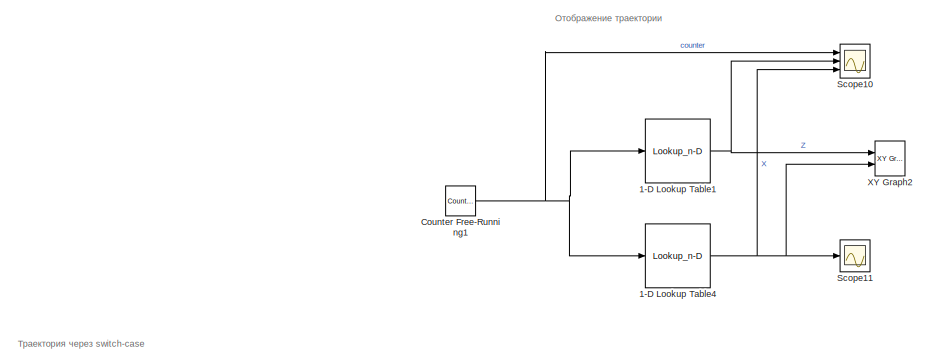
[diagram: root canvas - part 1/5, top left region]
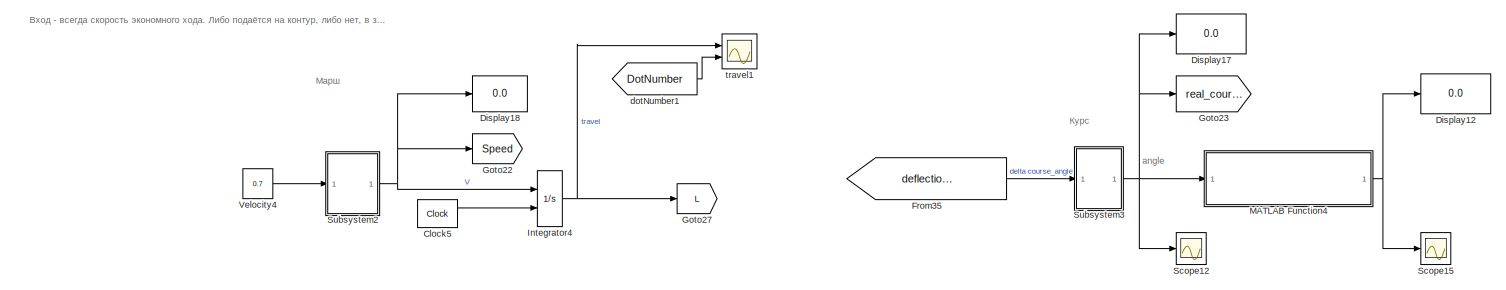
[diagram: root canvas - part 2/5, top center region]
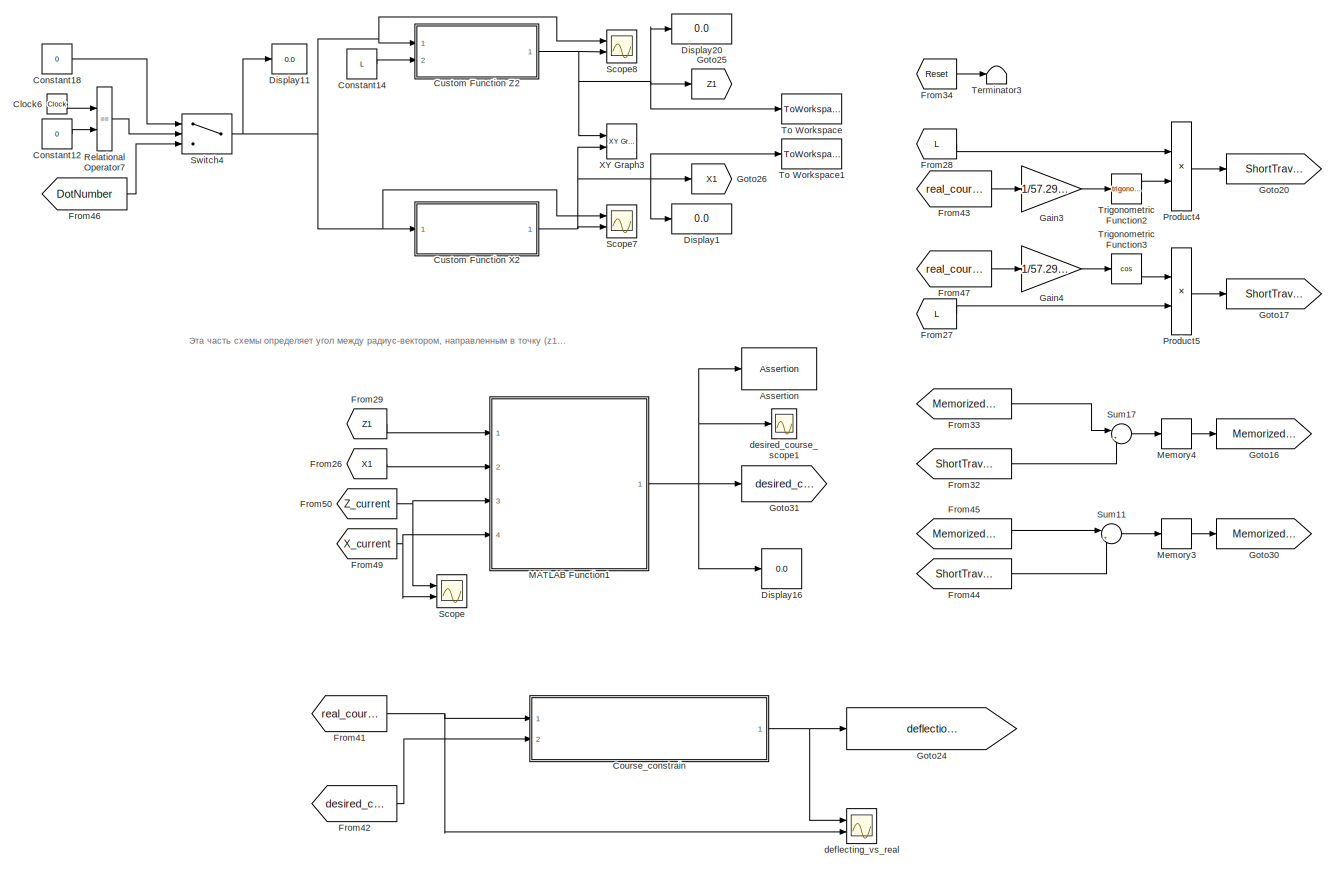
[diagram: root canvas - part 3/5, middle left region]
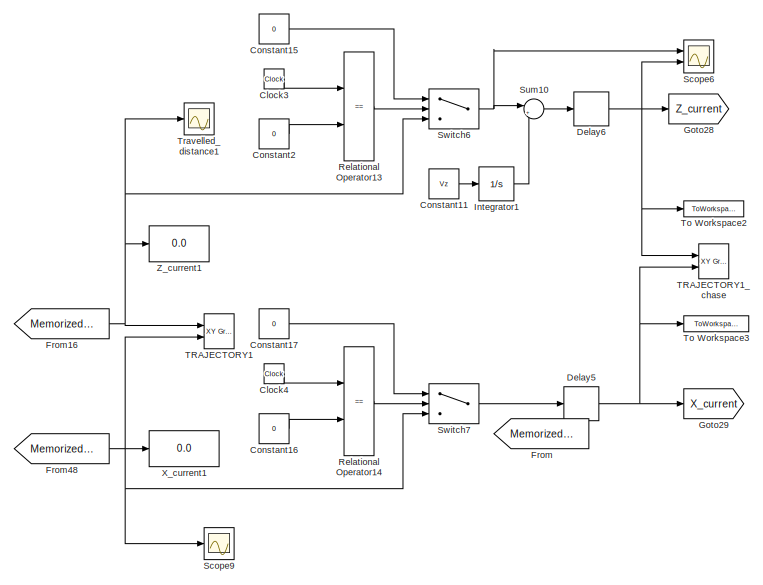
[diagram: root canvas - part 4/5, central region]
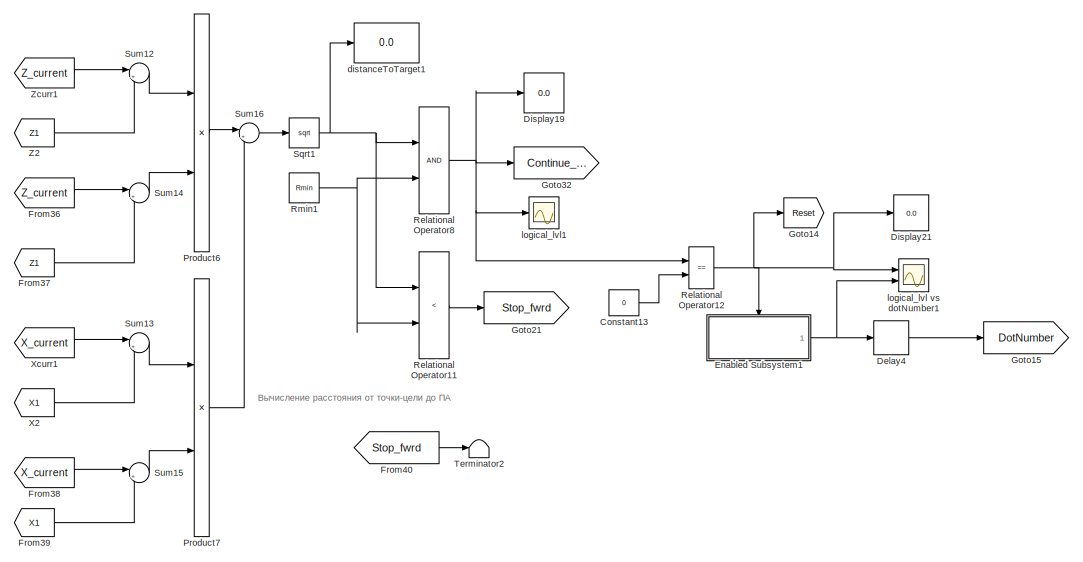
[diagram: root canvas - part 5/5, middle right region]
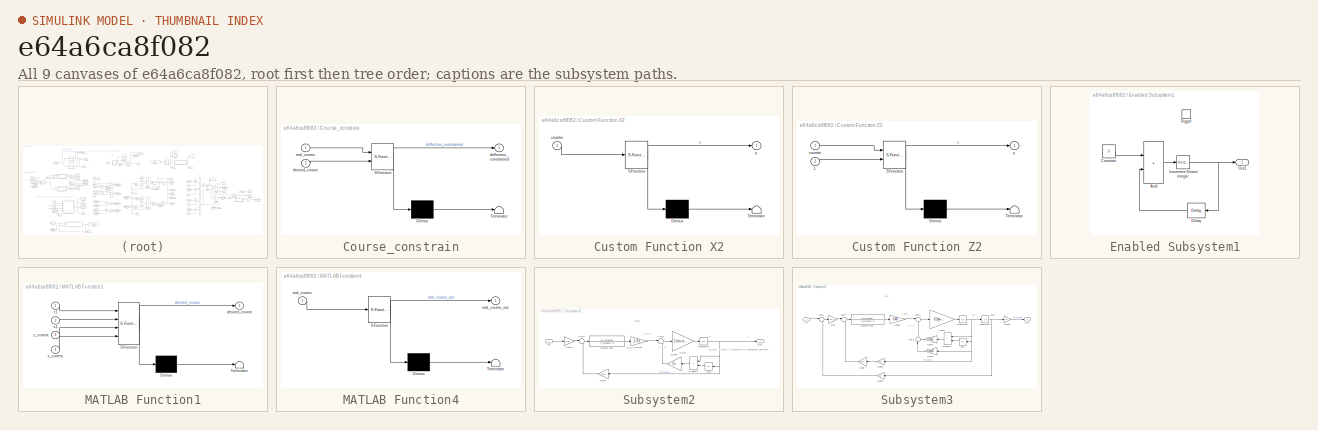
[diagram: thumbnail index - all 9 canvases of the model, root first then tree order]
MODEL slx_e64a6ca8f082
KIND model
CONFIG AbsTol = auto
CONFIG EnableMultiTasking = off
CONFIG FixedStep = 0.0000001
CONFIG MaxStep = auto
CONFIG MinStep = auto
CONFIG RelTol = 1e-3
CONFIG SampleTimeConstraint = Unconstrained
CONFIG Solver = VariableStepAuto
CONFIG SolverName = VariableStepAuto
CONFIG StartTime = 0.0
CONFIG StopTime = 400
BLOCK [Lookup_n-D] 1-D Lookup Table1
  BreakpointsForDimension1 = [0:7]
  BreakpointsForDimension1DataTypeStr = uint8
  BreakpointsForDimension1FirstPoint = 0
  Commented = on
  ExtrapMethod = Cubic spline
  InternalRulePriority = Speed
  InterpMethod = Flat
  NumberOfTableDimensions = 1
  OutDataTypeStr = double
  Ports = [1, 1]
  RemoveProtectionInput = on
  RndMeth = Zero
  Table = [0,0,L,L,2*L,2*L,3*L, 3*L]
  TableDataTypeStr = double
BLOCK [Lookup_n-D] 1-D Lookup Table4
  BreakpointsForDimension1 = [0:7]
  BreakpointsForDimension1DataTypeStr = int16
  Commented = on
  InternalRulePriority = Speed
  InterpMethod = Flat
  NumberOfTableDimensions = 1
  OutDataTypeStr = double
  Ports = [1, 1]
  RemoveProtectionInput = on
  RndMeth = Zero
  Table = [0,25,25,0,0,25,25,0]
  TableDataTypeStr = double
BLOCK [Assertion] Assertion
  AssertionFailFcn = -1
  Commented = on
BLOCK [Clock] Clock3
BLOCK [Clock] Clock4
BLOCK [Reference] Clock5  REF=simulink_extras/Flip Flops/Clock
  Ports = [0, 1]
  SourceBlock = simulink_extras/Flip Flops/Clock
  SourceProductBaseCode = SL
  SourceType = Digital clock
BLOCK [Clock] Clock6
BLOCK [Constant] Constant11
  Value = Vz
BLOCK [Constant] Constant12
  Value = 0
BLOCK [Constant] Constant13
  Value = 0
BLOCK [Constant] Constant14
  Value = L
BLOCK [Constant] Constant15
  Value = 0
BLOCK [Constant] Constant16
  Value = 0
BLOCK [Constant] Constant17
  Value = 0
BLOCK [Constant] Constant18
  Value = 0
BLOCK [Constant] Constant2
  Value = 0
BLOCK [Reference] Counter Free-Running1  REF=simulink/Sources/Counter
Free-Running
  Commented = on
  Ports = [0, 1]
  SourceBlock = simulink/Sources/Counter\nFree-Running
  SourceProductBaseCode = SL
  SourceType = Counter Free-Running
BLOCK [SubSystem] Course_constrain
  ErrorFcn = Stateflow.Translate.translate
  PermitHierarchicalResolution = ExplicitOnly
  Ports = [2, 1]
  RequestExecContextInheritance = off
  SFBlockType = MATLAB Function
  TreatAsAtomicUnit = on
BLOCK [Demux] Course_constrain/ Demux 
  Outputs = 1
  Ports = [1, 1]
BLOCK [S-Function] Course_constrain/ SFunction 
  EnableBusSupport = off
  FunctionName = sf_sfun
  PortCounts = [2 2]
  Ports = [2, 2]
  SFcnIsStateOwnerBlock = off
  SFunctionDeploymentMode = off
  Tag = Stateflow S-Function 8
BLOCK [Terminator] Course_constrain/ Terminator 
BLOCK [Outport] Course_constrain/deflection_constrained
  VectorParamsAs1DForOutWhenUnconnected = off
BLOCK [Inport] Course_constrain/desired_course
  Port = 2
BLOCK [Inport] Course_constrain/real_course
BLOCK [SubSystem] Custom Function X2
  ErrorFcn = Stateflow.Translate.translate
  PermitHierarchicalResolution = ExplicitOnly
  Ports = [1, 1]
  RequestExecContextInheritance = off
  SFBlockType = MATLAB Function
  TreatAsAtomicUnit = on
BLOCK [Demux] Custom Function X2/ Demux 
  Outputs = 1
  Ports = [1, 1]
BLOCK [S-Function] Custom Function X2/ SFunction 
  EnableBusSupport = off
  FunctionName = sf_sfun
  PortCounts = [1 2]
  Ports = [1, 2]
  SFcnIsStateOwnerBlock = off
  SFunctionDeploymentMode = off
  Tag = Stateflow S-Function 1
BLOCK [Terminator] Custom Function X2/ Terminator 
BLOCK [Inport] Custom Function X2/counter
BLOCK [Outport] Custom Function X2/y
  VectorParamsAs1DForOutWhenUnconnected = off
BLOCK [SubSystem] Custom Function Z2
  ErrorFcn = Stateflow.Translate.translate
  PermitHierarchicalResolution = ExplicitOnly
  Ports = [2, 1]
  RequestExecContextInheritance = off
  SFBlockType = MATLAB Function
  TreatAsAtomicUnit = on
BLOCK [Demux] Custom Function Z2/ Demux 
  Outputs = 1
  Ports = [1, 1]
BLOCK [S-Function] Custom Function Z2/ SFunction 
  EnableBusSupport = off
  FunctionName = sf_sfun
  PortCounts = [2 2]
  Ports = [2, 2]
  SFcnIsStateOwnerBlock = off
  SFunctionDeploymentMode = off
  Tag = Stateflow S-Function 2
BLOCK [Terminator] Custom Function Z2/ Terminator 
BLOCK [Inport] Custom Function Z2/L
  Port = 2
BLOCK [Inport] Custom Function Z2/counter
BLOCK [Outport] Custom Function Z2/y
  VectorParamsAs1DForOutWhenUnconnected = off
BLOCK [Delay] Delay4
  DelayLength = 1
  InitialCondition = 0
  InputPortMap = u0
  Ports = [1, 1]
  SampleTime = 0.05
BLOCK [Delay] Delay5
  DelayLength = 1
  InputPortMap = u0
  Ports = [1, 1]
  SampleTime = 0.05
BLOCK [Delay] Delay6
  DelayLength = 1
  InputPortMap = u0
  Ports = [1, 1]
  SampleTime = 0.05
BLOCK [Display] Display1
  Decimation = 1
  Ports = [1]
BLOCK [Display] Display11
  Decimation = 1
  Ports = [1]
BLOCK [Display] Display12
  Decimation = 1
  Ports = [1]
BLOCK [Display] Display16
  Decimation = 1
  Ports = [1]
BLOCK [Display] Display17
  Decimation = 1
  Ports = [1]
BLOCK [Display] Display18
  Decimation = 1
  Ports = [1]
BLOCK [Display] Display19
  Decimation = 1
  Ports = [1]
BLOCK [Display] Display20
  Decimation = 1
  Ports = [1]
BLOCK [Display] Display21
  Decimation = 1
  Ports = [1]
BLOCK [SubSystem] Enabled Subsystem1
  Ports = [0, 1, 0, 1]
  RequestExecContextInheritance = off
  TreatAsAtomicUnit = on
BLOCK [Sum] Enabled Subsystem1/Add
  IconShape = rectangular
  Ports = [2, 1]
BLOCK [Constant] Enabled Subsystem1/Constant
  Value = 0
BLOCK [Delay] Enabled Subsystem1/Delay
  DelayLength = 1
  InitialCondition = 0
  InputPortMap = u0
  NameLocation = top
  Ports = [1, 1]
BLOCK [Reference] Enabled Subsystem1/Increment Stored Integer  REF=simulink/Additional Math
& Discrete/Additional Math:
Increment - Decrement/Increment
Stored Integer
  Ports = [1, 1]
  SourceBlock = simulink/Additional Math\n& Discrete/Additional Math:\nIncrement - Decrement/Increment\nStored Integer
  SourceProductBaseCode = SL
  SourceType = Stored Integer Value Increment
BLOCK [Outport] Enabled Subsystem1/Out1
  VectorParamsAs1DForOutWhenUnconnected = off
BLOCK [TriggerPort] Enabled Subsystem1/Trigger
  PortDimensions = 1
  Ports = []
  StatesWhenEnabling = held
  VariantControl = Variant
BLOCK [From] From
  GotoTag = Memorized_Z
BLOCK [From] From16
  GotoTag = Memorized_Z
BLOCK [From] From26
  GotoTag = X1
BLOCK [From] From27
  GotoTag = L
BLOCK [From] From28
  GotoTag = L
BLOCK [From] From29
  GotoTag = Z1
BLOCK [From] From32
  GotoTag = ShortTravel_Z
BLOCK [From] From33
  GotoTag = Memorized_Z
BLOCK [From] From34
  GotoTag = Reset
BLOCK [From] From35
  GotoTag = deflection_course_constrained
BLOCK [From] From36
  GotoTag = Z_current
BLOCK [From] From37
  GotoTag = Z1
BLOCK [From] From38
  GotoTag = X_current
BLOCK [From] From39
  GotoTag = X1
BLOCK [From] From40
  GotoTag = Stop_fwrd
BLOCK [From] From41
  GotoTag = real_course
BLOCK [From] From42
  GotoTag = desired_course
BLOCK [From] From43
  GotoTag = real_course
BLOCK [From] From44
  GotoTag = ShortTravel_X
BLOCK [From] From45
  GotoTag = Memorized_X
BLOCK [From] From46
  GotoTag = DotNumber
BLOCK [From] From47
  GotoTag = real_course
BLOCK [From] From48
  GotoTag = Memorized_X
BLOCK [From] From49
  GotoTag = X_current
BLOCK [From] From50
  GotoTag = Z_current
BLOCK [Gain] Gain3
  Gain = 1/57.2958
BLOCK [Gain] Gain4
  Gain = 1/57.2958
BLOCK [Goto] Goto14
  GotoTag = Reset
BLOCK [Goto] Goto15
  GotoTag = DotNumber
BLOCK [Goto] Goto16
  GotoTag = Memorized_Z
BLOCK [Goto] Goto17
  GotoTag = ShortTravel_X
BLOCK [Goto] Goto20
  GotoTag = ShortTravel_Z
BLOCK [Goto] Goto21
  GotoTag = Stop_fwrd
BLOCK [Goto] Goto22
  GotoTag = Speed
BLOCK [Goto] Goto23
  GotoTag = real_course
BLOCK [Goto] Goto24
  GotoTag = deflection_course_constrained
BLOCK [Goto] Goto25
  GotoTag = Z1
BLOCK [Goto] Goto26
  GotoTag = X1
BLOCK [Goto] Goto27
  GotoTag = L
BLOCK [Goto] Goto28
  GotoTag = Z_current
BLOCK [Goto] Goto29
  GotoTag = X_current
BLOCK [Goto] Goto30
  GotoTag = Memorized_X
BLOCK [Goto] Goto31
  GotoTag = desired_course
BLOCK [Goto] Goto32
  Commented = on
  GotoTag = Continue_fwrd
BLOCK [Integrator] Integrator1
  Ports = [1, 1]
BLOCK [Integrator] Integrator4
  ExternalReset = rising
  Ports = [2, 1]
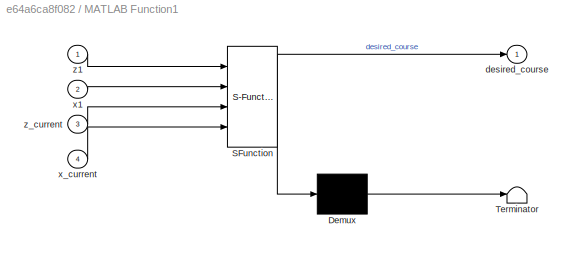
BLOCK [SubSystem] MATLAB Function1
  ErrorFcn = Stateflow.Translate.translate
  PermitHierarchicalResolution = ExplicitOnly
  Ports = [4, 1]
  RequestExecContextInheritance = off
  SFBlockType = MATLAB Function
  TreatAsAtomicUnit = on
BLOCK [Demux] MATLAB Function1/ Demux 
  Outputs = 1
  Ports = [1, 1]
BLOCK [S-Function] MATLAB Function1/ SFunction 
  EnableBusSupport = off
  FunctionName = sf_sfun
  PortCounts = [4 2]
  Ports = [4, 2]
  SFcnIsStateOwnerBlock = off
  SFunctionDeploymentMode = off
  Tag = Stateflow S-Function 6
BLOCK [Terminator] MATLAB Function1/ Terminator 
BLOCK [Outport] MATLAB Function1/desired_course
  VectorParamsAs1DForOutWhenUnconnected = off
BLOCK [Inport] MATLAB Function1/x1
  Port = 2
BLOCK [Inport] MATLAB Function1/x_current
  Port = 4
BLOCK [Inport] MATLAB Function1/z1
BLOCK [Inport] MATLAB Function1/z_current
  Port = 3
BLOCK [SubSystem] MATLAB Function4
  ErrorFcn = Stateflow.Translate.translate
  PermitHierarchicalResolution = ExplicitOnly
  Ports = [1, 1]
  RequestExecContextInheritance = off
  SFBlockType = MATLAB Function
  TreatAsAtomicUnit = on
BLOCK [Demux] MATLAB Function4/ Demux 
  Outputs = 1
  Ports = [1, 1]
BLOCK [S-Function] MATLAB Function4/ SFunction 
  EnableBusSupport = off
  FunctionName = sf_sfun
  PortCounts = [1 2]
  Ports = [1, 2]
  SFcnIsStateOwnerBlock = off
  SFunctionDeploymentMode = off
  Tag = Stateflow S-Function 7
BLOCK [Terminator] MATLAB Function4/ Terminator 
BLOCK [Inport] MATLAB Function4/real_course
BLOCK [Outport] MATLAB Function4/real_course_out
  VectorParamsAs1DForOutWhenUnconnected = off
BLOCK [Memory] Memory3
BLOCK [Memory] Memory4
BLOCK [Product] Product4
  Ports = [2, 1]
BLOCK [Product] Product5
  Ports = [2, 1]
BLOCK [Product] Product6
  Ports = [2, 1]
BLOCK [Product] Product7
  Ports = [2, 1]
BLOCK [RelationalOperator] Relational Operator11
  InputSameDT = off
  Operator = <
  OutDataTypeStr = boolean
  Ports = [2, 1]
  RndMeth = Simplest
BLOCK [RelationalOperator] Relational Operator12
  InputSameDT = off
  Operator = ==
  OutDataTypeStr = boolean
  Ports = [2, 1]
  RndMeth = Simplest
BLOCK [RelationalOperator] Relational Operator13
  InputSameDT = off
  Operator = ==
  OutDataTypeStr = boolean
  Ports = [2, 1]
  RndMeth = Simplest
BLOCK [RelationalOperator] Relational Operator14
  InputSameDT = off
  Operator = ==
  OutDataTypeStr = boolean
  Ports = [2, 1]
  RndMeth = Simplest
BLOCK [RelationalOperator] Relational Operator7
  InputSameDT = off
  Operator = ==
  OutDataTypeStr = boolean
  Ports = [2, 1]
  RndMeth = Simplest
BLOCK [RelationalOperator] Relational Operator8
  InputSameDT = off
  OutDataTypeStr = boolean
  Ports = [2, 1]
  RndMeth = Simplest
BLOCK [Constant] Rmin1
  Value = Rmin
BLOCK [Scope] Scope
  Floating = off
  NumInputPorts = 2
  Ports = [2]
  ScopeSpecificationString = Simulink.scopes.TimeScopeBlockCfg('CurrentConfiguration', extmgr.ConfigurationSet(extmgr.Configuration('Core','General UI',true),extmgr.Configuration('Core','Source UI',true),extmgr.Configuration('Sources','WiredSimulink',true,'DataLoggingVariableName','ScopeData1'),extmgr.Configuration('Visuals','Time Domain',true),extmgr.Configuration('Tools','Plot Navigation',true),extmgr.Configuration('Tools',...<+40ch>
BLOCK [Scope] Scope10
  Commented = on
  Floating = off
  NumInputPorts = 3
  Ports = [3]
  ScopeSpecificationString = Simulink.scopes.TimeScopeBlockCfg('CurrentConfiguration', extmgr.ConfigurationSet(extmgr.Configuration('Core','General UI',true),extmgr.Configuration('Core','Source UI',true),extmgr.Configuration('Sources','WiredSimulink',true,'DataLoggingVariableName','ScopeData2'),extmgr.Configuration('Visuals','Time Domain',true,'SerializedDisplays',{struct('MinYLimReal','-1.15003','MaxYLimReal','25.48588','YLa...<+1515ch>
BLOCK [Scope] Scope11
  Commented = on
  Floating = off
  NumInputPorts = 1
  Ports = [1]
  ScopeSpecificationString = Simulink.scopes.TimeScopeBlockCfg('CurrentConfiguration', extmgr.ConfigurationSet(extmgr.Configuration('Core','General UI',true),extmgr.Configuration('Core','Source UI',true),extmgr.Configuration('Sources','WiredSimulink',true,'DataLoggingVariableName','ScopeData3'),extmgr.Configuration('Visuals','Time Domain',true,'SerializedDisplays',{struct('MinYLimReal','-3.125','MaxYLimReal','28.125','YLabelR...<+1397ch>
BLOCK [Scope] Scope12
  Floating = off
  NumInputPorts = 1
  Ports = [1]
  ScopeSpecificationString = Simulink.scopes.TimeScopeBlockCfg('CurrentConfiguration', extmgr.ConfigurationSet(extmgr.Configuration('Core','General UI',true),extmgr.Configuration('Core','Source UI',true),extmgr.Configuration('Sources','WiredSimulink',true,'DataLoggingVariableName','ScopeData4'),extmgr.Configuration('Visuals','Time Domain',true,'SerializedDisplays',{struct('MinYLimReal','-42.56935','MaxYLimReal','402.57872','Y...<+1478ch>
BLOCK [Scope] Scope15
  Floating = off
  NumInputPorts = 1
  Ports = [1]
  ScopeSpecificationString = Simulink.scopes.TimeScopeBlockCfg('CurrentConfiguration', extmgr.ConfigurationSet(extmgr.Configuration('Core','General UI',true),extmgr.Configuration('Core','Source UI',true),extmgr.Configuration('Sources','WiredSimulink',true,'DataLoggingVariableName','ScopeData5'),extmgr.Configuration('Visuals','Time Domain',true,'SerializedDisplays',{struct('MinYLimReal','-45.00000','MaxYLimReal','405.00000','Y...<+1459ch>
BLOCK [Scope] Scope6
  Floating = off
  NumInputPorts = 2
  Ports = [2]
  ScopeSpecificationString = Simulink.scopes.TimeScopeBlockCfg('CurrentConfiguration', extmgr.ConfigurationSet(extmgr.Configuration('Core','General UI',true),extmgr.Configuration('Core','Source UI',true),extmgr.Configuration('Sources','WiredSimulink',true,'DataLoggingVariableName','ScopeData6'),extmgr.Configuration('Visuals','Time Domain',true,'SerializedDisplays',{struct('MinYLimReal','-0.04774','MaxYLimReal','0.42867','YLab...<+1441ch>
BLOCK [Scope] Scope7
  Floating = off
  NumInputPorts = 2
  Ports = [2]
  ScopeSpecificationString = Simulink.scopes.TimeScopeBlockCfg('CurrentConfiguration', extmgr.ConfigurationSet(extmgr.Configuration('Core','General UI',true),extmgr.Configuration('Core','Source UI',true),extmgr.Configuration('Sources','WiredSimulink',true,'DataLoggingVariableName','ScopeData7'),extmgr.Configuration('Visuals','Time Domain',true,'SerializedDisplays',{struct('MinYLimReal','-3.125','MaxYLimReal','28.125','YLabelR...<+1432ch>
BLOCK [Scope] Scope8
  Floating = off
  NumInputPorts = 2
  Ports = [2]
  ScopeSpecificationString = Simulink.scopes.TimeScopeBlockCfg('CurrentConfiguration', extmgr.ConfigurationSet(extmgr.Configuration('Core','General UI',true),extmgr.Configuration('Core','Source UI',true),extmgr.Configuration('Sources','WiredSimulink',true,'DataLoggingVariableName','ScopeData8'),extmgr.Configuration('Visuals','Time Domain',true,'SerializedDisplays',{struct('MinYLimReal','-1.25','MaxYLimReal','11.25','YLabelRea...<+1472ch>
BLOCK [Scope] Scope9
  Floating = off
  NumInputPorts = 1
  Ports = [1]
  ScopeSpecificationString = Simulink.scopes.TimeScopeBlockCfg('CurrentConfiguration', extmgr.ConfigurationSet(extmgr.Configuration('Core','General UI',true),extmgr.Configuration('Core','Source UI',true),extmgr.Configuration('Sources','WiredSimulink',true,'DataLoggingVariableName','ScopeData9'),extmgr.Configuration('Visuals','Time Domain',true,'SerializedDisplays',{struct('MinYLimReal','-16.75595','MaxYLimReal','150.80354','Y...<+1446ch>
BLOCK [Sqrt] Sqrt1
BLOCK [SubSystem] Subsystem2
  Ports = [1, 1]
  RequestExecContextInheritance = off
BLOCK [Abs] Subsystem2/Abs1
  NameLocation = top
  SaturateOnIntegerOverflow = off
BLOCK [Gain] Subsystem2/Gain4
  Gain = 6.72
BLOCK [Gain] Subsystem2/Gain5
  Gain = k2_m
  NameLocation = top
BLOCK [Gain] Subsystem2/Gain7
  Gain = 1/(m+lambda11)
BLOCK [Gain] Subsystem2/Gain8
  Gain = Cx
  NameLocation = top
BLOCK [Gain] Subsystem2/Gain9
  Gain = 2.83
BLOCK [Inport] Subsystem2/In1
BLOCK [Integrator] Subsystem2/Integrator2
  InitialCondition = 0.7
  Ports = [1, 1]
BLOCK [Outport] Subsystem2/Out1
  VectorParamsAs1DForOutWhenUnconnected = off
BLOCK [Product] Subsystem2/Product1
  NameLocation = top
  Ports = [2, 1]
BLOCK [Sum] Subsystem2/Sum4
  Inputs = |+-
  Ports = [2, 1]
BLOCK [Sum] Subsystem2/Sum5
  Inputs = |+-
  Ports = [2, 1]
BLOCK [TransferFcn] Subsystem2/Transfer Fcn1
  Denominator = [T_thruster 1]
  Numerator = [K_thruster]
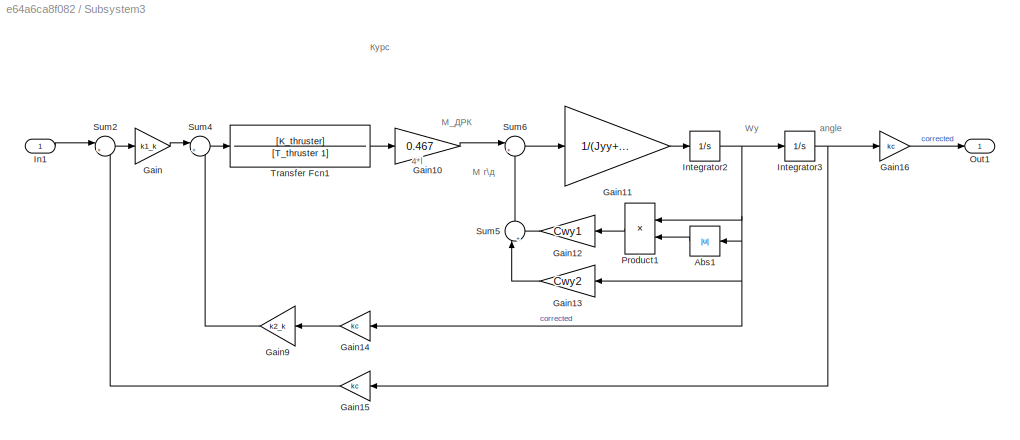
BLOCK [SubSystem] Subsystem3
  Ports = [1, 1]
  RequestExecContextInheritance = off
BLOCK [Abs] Subsystem3/Abs1
  NameLocation = top
  SaturateOnIntegerOverflow = off
BLOCK [Gain] Subsystem3/Gain
  Gain = k1_k
BLOCK [Gain] Subsystem3/Gain10
  Gain = 0.467
BLOCK [Gain] Subsystem3/Gain11
  Gain = 1/(Jyy+lambda55)
BLOCK [Gain] Subsystem3/Gain12
  Gain = Cwy1
  NameLocation = top
BLOCK [Gain] Subsystem3/Gain13
  Gain = Cwy2
  NameLocation = top
BLOCK [Gain] Subsystem3/Gain14
  Gain = kc
  NameLocation = top
BLOCK [Gain] Subsystem3/Gain15
  Gain = kc
  NameLocation = top
BLOCK [Gain] Subsystem3/Gain16
  Gain = kc
BLOCK [Gain] Subsystem3/Gain9
  Gain = k2_k
  NameLocation = top
BLOCK [Inport] Subsystem3/In1
BLOCK [Integrator] Subsystem3/Integrator2
  Ports = [1, 1]
BLOCK [Integrator] Subsystem3/Integrator3
  Ports = [1, 1]
BLOCK [Outport] Subsystem3/Out1
  VectorParamsAs1DForOutWhenUnconnected = off
BLOCK [Product] Subsystem3/Product1
  NameLocation = top
  Ports = [2, 1]
BLOCK [Sum] Subsystem3/Sum2
  Inputs = |+-
  Ports = [2, 1]
BLOCK [Sum] Subsystem3/Sum4
  Inputs = |+-
  Ports = [2, 1]
BLOCK [Sum] Subsystem3/Sum5
  Inputs = |++
  NameLocation = left
  Ports = [2, 1]
BLOCK [Sum] Subsystem3/Sum6
  Inputs = |+-
  Ports = [2, 1]
BLOCK [TransferFcn] Subsystem3/Transfer Fcn1
  Denominator = [T_thruster 1]
  Numerator = [K_thruster]
BLOCK [Sum] Sum10
  Inputs = |++
  Ports = [2, 1]
BLOCK [Sum] Sum11
  Inputs = |++
  Ports = [2, 1]
BLOCK [Sum] Sum12
  Inputs = |+-
  Ports = [2, 1]
BLOCK [Sum] Sum13
  Inputs = |+-
  Ports = [2, 1]
BLOCK [Sum] Sum14
  Inputs = |+-
  Ports = [2, 1]
BLOCK [Sum] Sum15
  Inputs = |+-
  Ports = [2, 1]
BLOCK [Sum] Sum16
  Inputs = |++
  Ports = [2, 1]
BLOCK [Sum] Sum17
  Inputs = |++
  Ports = [2, 1]
BLOCK [Switch] Switch4
  InputSameDT = off
  SaturateOnIntegerOverflow = off
  Threshold = 1
BLOCK [Switch] Switch6
  InputSameDT = off
  SaturateOnIntegerOverflow = off
  Threshold = 1
BLOCK [Switch] Switch7
  InputSameDT = off
  SaturateOnIntegerOverflow = off
  Threshold = 1
BLOCK [Reference] TRAJECTORY1  REF=simulink/Sinks/XY Graph
  Commented = on
  Ports = [2]
  SourceBlock = simulink/Sinks/XY Graph
  SourceProductBaseCode = SL
  SourceType = XY scope.
BLOCK [Reference] TRAJECTORY1_chase  REF=simulink/Sinks/XY Graph
  Ports = [2]
  SourceBlock = simulink/Sinks/XY Graph
  SourceProductBaseCode = SL
  SourceType = XY scope.
BLOCK [Terminator] Terminator2
BLOCK [Terminator] Terminator3
BLOCK [ToWorkspace] To Workspace
  FixptAsFi = on
  MaxDataPoints = inf
  Ports = [1]
  SampleTime = -1
  VariableName = trajectory_z
BLOCK [ToWorkspace] To Workspace1
  FixptAsFi = on
  MaxDataPoints = inf
  Ports = [1]
  SampleTime = -1
  VariableName = trajectory_x
BLOCK [ToWorkspace] To Workspace2
  FixptAsFi = on
  MaxDataPoints = inf
  Ports = [1]
  SampleTime = -1
  VariableName = chase_z
BLOCK [ToWorkspace] To Workspace3
  FixptAsFi = on
  MaxDataPoints = inf
  Ports = [1]
  SampleTime = -1
  VariableName = chase_x
BLOCK [Scope] Travelled_distance1
  Floating = off
  NumInputPorts = 1
  Ports = [1]
  ScopeSpecificationString = Simulink.scopes.TimeScopeBlockCfg('CurrentConfiguration', extmgr.ConfigurationSet(extmgr.Configuration('Core','General UI',true),extmgr.Configuration('Core','Source UI',true),extmgr.Configuration('Sources','WiredSimulink',true,'DataLoggingVariableName','ScopeData10'),extmgr.Configuration('Visuals','Time Domain',true,'SerializedDisplays',{struct('MinYLimReal','-0.63391','MaxYLimReal','2.28711','YLa...<+1441ch>
BLOCK [Trigonometry] Trigonometric Function2
  Ports = [1, 1]
BLOCK [Trigonometry] Trigonometric Function3
  Operator = cos
  Ports = [1, 1]
BLOCK [Constant] Velocity4
  Value = 0.7
BLOCK [From] X2
  GotoTag = X1
BLOCK [Reference] XY Graph2  REF=simulink/Sinks/XY Graph
  Commented = on
  Ports = [2]
  SourceBlock = simulink/Sinks/XY Graph
  SourceProductBaseCode = SL
  SourceType = XY scope.
BLOCK [Reference] XY Graph3  REF=simulink/Sinks/XY Graph
  Ports = [2]
  SourceBlock = simulink/Sinks/XY Graph
  SourceProductBaseCode = SL
  SourceType = XY scope.
BLOCK [Display] X_current1
  Decimation = 1
  Ports = [1]
BLOCK [From] Xcurr1
  GotoTag = X_current
BLOCK [From] Z2
  GotoTag = Z1
BLOCK [Display] Z_current1
  Decimation = 1
  Ports = [1]
BLOCK [From] Zcurr1
  GotoTag = Z_current
BLOCK [Scope] deflecting_vs_real
  Floating = off
  NumInputPorts = 2
  Ports = [2]
  ScopeSpecificationString = Simulink.scopes.TimeScopeBlockCfg('CurrentConfiguration', extmgr.ConfigurationSet(extmgr.Configuration('Core','General UI',true),extmgr.Configuration('Core','Source UI',true),extmgr.Configuration('Sources','WiredSimulink',true,'DataLoggingVariableName','ScopeData11'),extmgr.Configuration('Visuals','Time Domain',true,'SerializedDisplays',{struct('MinYLimReal','-100.60657','MaxYLimReal','369.55194',...<+1546ch>
BLOCK [Scope] desired_course_scope1
  Floating = off
  NumInputPorts = 1
  Ports = [1]
  ScopeSpecificationString = Simulink.scopes.TimeScopeBlockCfg('CurrentConfiguration', extmgr.ConfigurationSet(extmgr.Configuration('Core','General UI',true),extmgr.Configuration('Core','Source UI',true),extmgr.Configuration('Sources','WiredSimulink',true,'DataLoggingVariableName','ScopeData12'),extmgr.Configuration('Visuals','Time Domain',true,'SerializedDisplays',{struct('MinYLimReal','-42.60571','MaxYLimReal','402.61523','...<+1480ch>
BLOCK [Display] distanceToTarget1
  Decimation = 1
  Ports = [1]
BLOCK [From] dotNumber1
  GotoTag = DotNumber
BLOCK [Scope] logical_lvl vs dotNumber1
  Floating = off
  NumInputPorts = 2
  Ports = [2]
  ScopeSpecificationString = Simulink.scopes.TimeScopeBlockCfg('CurrentConfiguration', extmgr.ConfigurationSet(extmgr.Configuration('Core','General UI',true),extmgr.Configuration('Core','Source UI',true),extmgr.Configuration('Sources','WiredSimulink',true,'DataLoggingVariableName','ScopeData13'),extmgr.Configuration('Visuals','Time Domain',true,'SerializedDisplays',{struct('MinYLimReal','-3.28708','MaxYLimReal','5.43836','YLa...<+1517ch>
BLOCK [Scope] logical_lvl1
  Floating = off
  NumInputPorts = 1
  Ports = [1]
  ScopeSpecificationString = Simulink.scopes.TimeScopeBlockCfg('CurrentConfiguration', extmgr.ConfigurationSet(extmgr.Configuration('Core','General UI',true),extmgr.Configuration('Core','Source UI',true),extmgr.Configuration('Sources','WiredSimulink',true,'DataLoggingVariableName','ScopeData14'),extmgr.Configuration('Visuals','Time Domain',true,'SerializedDisplays',{struct('MinYLimReal','-0.125','MaxYLimReal','1.125','YLabelR...<+1440ch>
BLOCK [Scope] travel1
  Floating = off
  NumInputPorts = 2
  Ports = [2]
  ScopeSpecificationString = Simulink.scopes.TimeScopeBlockCfg('CurrentConfiguration', extmgr.ConfigurationSet(extmgr.Configuration('Core','General UI',true),extmgr.Configuration('Core','Source UI',true),extmgr.Configuration('Sources','WiredSimulink',true,'DataLoggingVariableName','ScopeData15'),extmgr.Configuration('Visuals','Time Domain',true,'SerializedDisplays',{struct('MinYLimReal','-12.67329','MaxYLimReal','114.05963','...<+1483ch>
ANNOTATION (root): Курс
ANNOTATION (root): Марш
ANNOTATION (root): angle
ANNOTATION (root): Вход - всегда скорость экономного хода. Либо подаётся на контур, либо нет, в зависимости от близости к точке назначения
ANNOTATION (root): Вычисление расстояния от точки-цели до ПА
ANNOTATION (root): Отображение траектории
ANNOTATION (root): Траектория через switch-case
ANNOTATION (root): Эта часть схемы определяет угол между радиус-вектором, направленным в точку (z1, x1) и осью z. Иначе говоря, это угол beta
ANNOTATION Subsystem2: 4*sin(45)
ANNOTATION Subsystem2: Марш
ANNOTATION Subsystem2: P_ДРК
ANNOTATION Subsystem2: R г\д
ANNOTATION Subsystem2: Vx
ANNOTATION Subsystem2: x
ANNOTATION Subsystem2: Выход - X или Z, в зависимости от направления движения
ANNOTATION Subsystem3: 4*l
ANNOTATION Subsystem3: Курс
ANNOTATION Subsystem3: M г\д
ANNOTATION Subsystem3: M_ДРК
ANNOTATION Subsystem3: Wy
ANNOTATION Subsystem3: angle
NET 1-D Lookup Table1:1 -> Scope10:2, XY Graph2:1
NET 1-D Lookup Table4:1 -> Scope10:3, Scope11:1, XY Graph2:2
LINE Clock3:1 -> Relational Operator13:1
LINE Clock4:1 -> Relational Operator14:1
LINE Clock5:1 -> Integrator4:2
LINE Clock6:1 -> Relational Operator7:1
LINE Constant11:1 -> Integrator1:1
LINE Constant12:1 -> Relational Operator7:2
LINE Constant13:1 -> Relational Operator12:2
LINE Constant14:1 -> Custom Function Z2:2
LINE Constant15:1 -> Switch6:1
LINE Constant16:1 -> Relational Operator14:2
LINE Constant17:1 -> Switch7:1
LINE Constant18:1 -> Switch4:1
LINE Constant2:1 -> Relational Operator13:2
NET Counter Free-Running1:1 -> 1-D Lookup Table1:1, 1-D Lookup Table4:1, Scope10:1
NET Course_constrain:1 -> Goto24:1, deflecting_vs_real:1
NET Custom Function X2:1 -> Display1:1, Goto26:1, Scope7:2, To Workspace1:1, XY Graph3:2
NET Custom Function Z2:1 -> Display20:1, Goto25:1, Scope8:2, To Workspace:1, XY Graph3:1
LINE Delay4:1 -> Goto15:1
NET Delay5:1 -> Goto29:1, TRAJECTORY1_chase:2, To Workspace3:1
NET Delay6:1 -> Goto28:1, Scope6:2, TRAJECTORY1_chase:1, To Workspace2:1
LINE Enabled Subsystem1/Add:1 -> Enabled Subsystem1/Increment Stored Integer:1
LINE Enabled Subsystem1/Constant:1 -> Enabled Subsystem1/Add:1
LINE Enabled Subsystem1/Delay:1 -> Enabled Subsystem1/Add:2
NET Enabled Subsystem1/Increment Stored Integer:1 -> Enabled Subsystem1/Delay:1, Enabled Subsystem1/Out1:1
NET Enabled Subsystem1:1 -> Delay4:1, logical_lvl vs dotNumber1:2
NET From16:1 -> Switch6:3, TRAJECTORY1:1, Travelled_distance1:1, Z_current1:1
LINE From26:1 -> MATLAB Function1:2
LINE From27:1 -> Product5:2
LINE From28:1 -> Product4:1
LINE From29:1 -> MATLAB Function1:1
LINE From32:1 -> Sum17:2
LINE From33:1 -> Sum17:1
LINE From34:1 -> Terminator3:1
LINE From35:1 -> Subsystem3:1
LINE From36:1 -> Sum14:1
LINE From37:1 -> Sum14:2
LINE From38:1 -> Sum15:1
LINE From39:1 -> Sum15:2
LINE From40:1 -> Terminator2:1
NET From41:1 -> Course_constrain:1, deflecting_vs_real:2
LINE From42:1 -> Course_constrain:2
LINE From43:1 -> Gain3:1
LINE From44:1 -> Sum11:2
LINE From45:1 -> Sum11:1
LINE From46:1 -> Switch4:3
LINE From47:1 -> Gain4:1
NET From48:1 -> Scope9:1, Switch7:3, TRAJECTORY1:2, X_current1:1
NET From49:1 -> MATLAB Function1:4, Scope:2
NET From50:1 -> MATLAB Function1:3, Scope:1
LINE Gain3:1 -> Trigonometric Function2:1
LINE Gain4:1 -> Trigonometric Function3:1
LINE Integrator1:1 -> Sum10:2
NET Integrator4:1 -> Goto27:1, travel1:1
NET MATLAB Function1:1 -> Assertion:1, Display16:1, Goto31:1, desired_course_scope1:1
NET MATLAB Function4:1 -> Display12:1, Scope15:1
LINE Memory3:1 -> Goto30:1
LINE Memory4:1 -> Goto16:1
LINE Product4:1 -> Goto20:1
LINE Product5:1 -> Goto17:1
LINE Product6:1 -> Sum16:1
LINE Product7:1 -> Sum16:2
LINE Relational Operator11:1 -> Goto21:1
NET Relational Operator12:1 -> Display21:1, Enabled Subsystem1:trigger, Goto14:1, logical_lvl vs dotNumber1:1
LINE Relational Operator13:1 -> Switch6:2
LINE Relational Operator14:1 -> Switch7:2
LINE Relational Operator7:1 -> Switch4:2
NET Relational Operator8:1 -> Display19:1, Goto32:1, Relational Operator12:1, logical_lvl1:1
NET Rmin1:1 -> Relational Operator11:2, Relational Operator8:2
NET Sqrt1:1 -> Relational Operator11:1, Relational Operator8:1, distanceToTarget1:1
LINE Subsystem2/Abs1:1 -> Subsystem2/Product1:2
LINE Subsystem2/Gain4:1 -> Subsystem2/Sum4:1
LINE Subsystem2/Gain5:1 -> Subsystem2/Sum4:2
LINE Subsystem2/Gain7:1 -> Subsystem2/Integrator2:1
LINE Subsystem2/Gain8:1 -> Subsystem2/Sum5:2
LINE Subsystem2/Gain9:1 -> Subsystem2/Sum5:1
LINE Subsystem2/In1:1 -> Subsystem2/Gain4:1
NET Subsystem2/Integrator2:1 -> Subsystem2/Abs1:1, Subsystem2/Gain5:1, Subsystem2/Out1:1, Subsystem2/Product1:1
LINE Subsystem2/Product1:1 -> Subsystem2/Gain8:1
LINE Subsystem2/Sum4:1 -> Subsystem2/Transfer Fcn1:1
LINE Subsystem2/Sum5:1 -> Subsystem2/Gain7:1
LINE Subsystem2/Transfer Fcn1:1 -> Subsystem2/Gain9:1
NET Subsystem2:1 -> Display18:1, Goto22:1, Integrator4:1
LINE Subsystem3/Abs1:1 -> Subsystem3/Product1:2
LINE Subsystem3/Gain10:1 -> Subsystem3/Sum6:1
LINE Subsystem3/Gain11:1 -> Subsystem3/Integrator2:1
LINE Subsystem3/Gain12:1 -> Subsystem3/Sum5:2
LINE Subsystem3/Gain13:1 -> Subsystem3/Sum5:1
LINE Subsystem3/Gain14:1 -> Subsystem3/Gain9:1
LINE Subsystem3/Gain15:1 -> Subsystem3/Sum2:2
LINE Subsystem3/Gain16:1 -> Subsystem3/Out1:1
LINE Subsystem3/Gain9:1 -> Subsystem3/Sum4:2
LINE Subsystem3/Gain:1 -> Subsystem3/Sum4:1
LINE Subsystem3/In1:1 -> Subsystem3/Sum2:1
NET Subsystem3/Integrator2:1 -> Subsystem3/Abs1:1, Subsystem3/Gain13:1, Subsystem3/Gain14:1, Subsystem3/Integrator3:1, Subsystem3/Product1:1
NET Subsystem3/Integrator3:1 -> Subsystem3/Gain15:1, Subsystem3/Gain16:1
LINE Subsystem3/Product1:1 -> Subsystem3/Gain12:1
LINE Subsystem3/Sum2:1 -> Subsystem3/Gain:1
LINE Subsystem3/Sum4:1 -> Subsystem3/Transfer Fcn1:1
LINE Subsystem3/Sum5:1 -> Subsystem3/Sum6:2
LINE Subsystem3/Sum6:1 -> Subsystem3/Gain11:1
LINE Subsystem3/Transfer Fcn1:1 -> Subsystem3/Gain10:1
NET Subsystem3:1 -> Display17:1, Goto23:1, MATLAB Function4:1, Scope12:1
LINE Sum10:1 -> Delay6:1
LINE Sum11:1 -> Memory3:1
LINE Sum12:1 -> Product6:1
LINE Sum13:1 -> Product7:1
LINE Sum14:1 -> Product6:2
LINE Sum15:1 -> Product7:2
LINE Sum16:1 -> Sqrt1:1
LINE Sum17:1 -> Memory4:1
NET Switch4:1 -> Custom Function X2:1, Custom Function Z2:1, Display11:1, Scope7:1, Scope8:1
NET Switch6:1 -> Scope6:1, Sum10:1
LINE Switch7:1 -> Delay5:1
LINE Trigonometric Function2:1 -> Product4:2
LINE Trigonometric Function3:1 -> Product5:1
LINE Velocity4:1 -> Subsystem2:1
LINE X2:1 -> Sum13:2
LINE Xcurr1:1 -> Sum13:1
LINE Z2:1 -> Sum12:2
LINE Zcurr1:1 -> Sum12:1
LINE dotNumber1:1 -> travel1:2
note: NET lines group one-source signal fan-out (src -> all destinations, sorted); 1:1 wires keep LINE
CHART Custom Function X2 states=1 transitions=1
  STATE_LABEL 'eML_blk_kernel()'
  STATE_LABEL 'SCRIPT:\nfunction y = fcn(counter)\n\n%L = 1.76;\n\nswitch counter\n    case 1\n      y = 25;\n    case 2\n      y = 0;\n    case 3\n      y = 0;\n    case 4\n      y = 25;\n    case 5\n      y = 25;\n    case 6\n      y = 0;\n    case 7\n      y = 0;\n    case 8\n      y = 25;    \n    case 9\n      y = 25;\n    case 10\n      y = 0;\n    case 11\n      y = 0;    \n    case 12\n      y = 25;      \n   otherwise\n      y = 25;\n...<+3ch>'
CHART Custom Function Z2 states=1 transitions=1
  STATE_LABEL 'eML_blk_kernel()'
  STATE_LABEL 'SCRIPT:\nfunction y = fcn( counter, L)\n\n%L = 1.76;\n\nswitch counter\n    case 1\n      y = L;\n    case 2\n      y = L;\n    case 3\n      y = 2*L;\n    case 4\n      y = 2*L;\n    case 5\n      y = 3*L;\n    case 6\n      y = 3*L;\n    case 7\n      y = 4*L;\n    case 8\n      y = 4*L;      \n    case 9\n      y = 5*L; \n    case 10\n      y = 5*L;\n    case 11\n      y = 6*L;\n    case 12\n      y = 6*L;      \n   otherwi...<+19ch>'
CHART MATLAB Function1 states=1 transitions=1
  STATE_LABEL 'eML_blk_kernel()'
  STATE_LABEL 'SCRIPT:\nfunction desired_course = fcn(z1, x1, z_current, x_current)\n\ndelta_x = x1 - x_current;\ndelta_z = z1 - z_current;\n\n%1\nif (delta_x >= 0) && (delta_z >= 0)\n    desired_course = 57.2958*atan(delta_z / delta_x);\n%2    \nelseif (delta_x >= 0) && (delta_z < 0)\n    desired_course = 360 - 57.2958*atan( abs(delta_z) / delta_x);\n%3    \nelseif (delta_x < 0) && (delta_z < 0)    \n    desired_course = 180...<+210ch>'
CHART MATLAB Function4 states=1 transitions=1
  STATE_LABEL 'eML_blk_kernel()'
  STATE_LABEL 'SCRIPT:\nfunction real_course_out   = fcn(real_course)\n\n    % Приводим к стандарту\n    if real_course < 0\n        real_course_out = 360 - abs(real_course);\n    elseif real_course >= 360\n        real_course_out = real_course - 360;\n    else    \n        real_course_out = real_course;\n    end\n\nend\n\n'
CHART Course_constrain states=1 transitions=1
  STATE_LABEL 'eML_blk_kernel()'
  STATE_LABEL 'SCRIPT:\nfunction deflection_constrained   = fcn(real_course, desired_course)\n\n    % предстоит повернуться более чем на 180 градусов\n    % текущее положение курса не имеет никакого значения,\n    %важно лишь конечное положение.\n    % Па должен поворачиват менее чем на 180 градусов\n    \n    if abs(desired_course - real_course) > 180\n    % выполняем ограничение\n        if desired_course > 180\n        ...<+330ch>'
CHART  states=0 transitions=0
CHART  states=0 transitions=0
CHART  states=0 transitions=0
CHART  states=0 transitions=0
CHART  states=0 transitions=0
